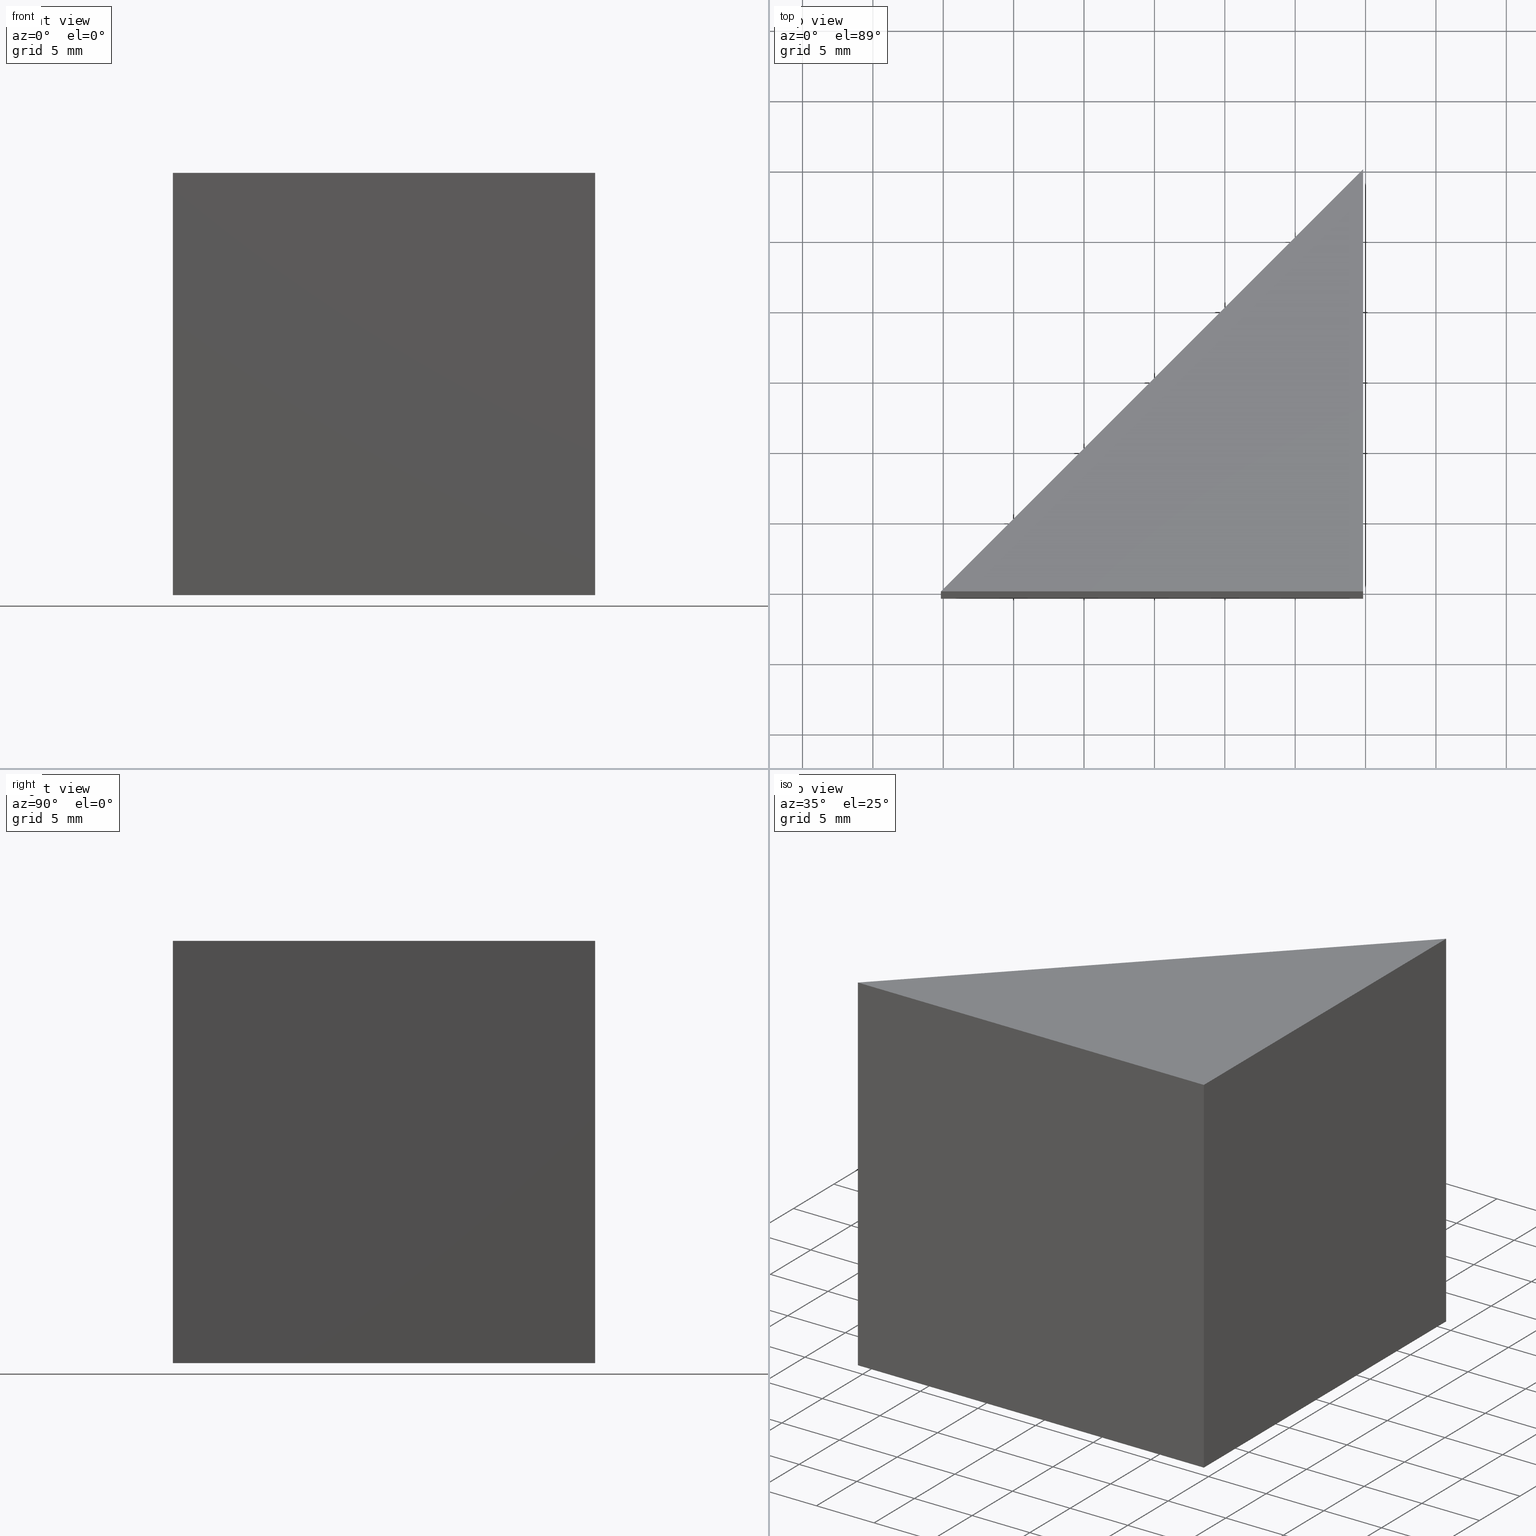
[diagram: canonical four-view strip — front | top / right | iso, engineering-drawing reading convention]
A machine part, canonical four-view strip (front | top / right | iso — engineering-drawing reading convention). The complete STEP part file that produces these views, byte-faithful:
ISO-10303-21;
HEADER;
FILE_DESCRIPTION (( 'STEP AP203' ),
    '1' );
FILE_NAME ('355509.STEP',
    '2019-07-22T06:09:25',
    ( '' ),
    ( '' ),
    'SwSTEP 2.0',
    'SolidWorks 2016',
    '' );
FILE_SCHEMA (( 'CONFIG_CONTROL_DESIGN' ));
ENDSEC;

DATA;
#1 = PERSON_AND_ORGANIZATION ( #153, #29 ) ;
#2 = CC_DESIGN_PERSON_AND_ORGANIZATION_ASSIGNMENT ( #198, #209, ( #26 ) ) ;
#3 = CALENDAR_DATE ( 2019, 22, 7 ) ;
#4 = CC_DESIGN_DATE_AND_TIME_ASSIGNMENT ( #94, #184, ( #217 ) ) ;
#5 = VECTOR ( 'NONE', #162, 1000.000000000000100 ) ;
#6 = APPROVAL ( #142, 'δָ��' ) ;
#7 = PRODUCT ( '355509', '355509', '', ( #166 ) ) ;
#8 = LOCAL_TIME ( 14, 9, 25.00000000000000000, #240 ) ;
#9 = CARTESIAN_POINT ( 'NONE',  ( 104.8284382265434300, 79.66744214418361000, 0.0000000000000000000 ) ) ;
#10 = CARTESIAN_POINT ( 'NONE',  ( 0.0000000000000000000, 0.0000000000000000000, 30.00000000000000000 ) ) ;
#11 = APPROVAL_DATE_TIME ( #191, #23 ) ;
#12 = CARTESIAN_POINT ( 'NONE',  ( 74.82843822654344000, 79.66744214418361000, 0.0000000000000000000 ) ) ;
#13 = VERTEX_POINT ( 'NONE', #140 ) ;
#14 = PRODUCT_DEFINITION_SHAPE ( 'NONE', 'NONE',  #217 ) ;
#15 = MANIFOLD_SOLID_BREP ( '͹̨-����1', #266 ) ;
#16 = EDGE_CURVE ( 'NONE', #257, #59, #186, .T. ) ;
#17 = APPROVAL_STATUS ( 'not_yet_approved' ) ;
#18 = APPLICATION_CONTEXT ( 'configuration controlled 3d designs of mechanical parts and assemblies' ) ;
#19 = APPROVAL_ROLE ( '' ) ;
#20 =( NAMED_UNIT ( * ) SI_UNIT ( $, .STERADIAN. ) SOLID_ANGLE_UNIT ( ) );
#21 = VECTOR ( 'NONE', #273, 1000.000000000000000 ) ;
#22 = SECURITY_CLASSIFICATION ( '', '', #42 ) ;
#23 = APPROVAL ( #255, 'δָ��' ) ;
#24 = CALENDAR_DATE ( 2019, 22, 7 ) ;
#25 = EDGE_LOOP ( 'NONE', ( #205, #136, #37, #175 ) ) ;
#26 = PRODUCT ( '355509', '355509', '', ( #62 ) ) ;
#27 = CALENDAR_DATE ( 2019, 22, 7 ) ;
#28 = APPROVAL_PERSON_ORGANIZATION ( #188, #23, #233 ) ;
#29 = ORGANIZATION ( 'δָ��', 'δָ��', '' ) ;
#30 = PLANE ( 'NONE',  #247 ) ;
#31 = VERTEX_POINT ( 'NONE', #160 ) ;
#32 = DIRECTION ( 'NONE',  ( -1.000000000000000000, 0.0000000000000000000, 0.0000000000000000000 ) ) ;
#33 = CARTESIAN_POINT ( 'NONE',  ( 104.8284382265434300, 79.66744214418361000, 30.00000000000000000 ) ) ;
#34 = CALENDAR_DATE ( 2019, 22, 7 ) ;
#35 = CARTESIAN_POINT ( 'NONE',  ( 104.8284382265434300, 79.66744214418361000, 30.00000000000000000 ) ) ;
#36 = DATE_AND_TIME ( #178, #108 ) ;
#37 = ORIENTED_EDGE ( 'NONE', *, *, #69, .F. ) ;
#38 = PERSON_AND_ORGANIZATION_ROLE ( 'design_supplier' ) ;
#39 =( NAMED_UNIT ( * ) PLANE_ANGLE_UNIT ( ) SI_UNIT ( $, .RADIAN. ) );
#40 = APPROVAL_PERSON_ORGANIZATION ( #264, #207, #63 ) ;
#41 = ADVANCED_FACE ( 'NONE', ( #90 ), #202, .F. ) ;
#42 = SECURITY_CLASSIFICATION_LEVEL ( 'unclassified' ) ;
#43 = CC_DESIGN_APPROVAL ( #23, ( #155 ) ) ;
#44 = ORIENTED_EDGE ( 'NONE', *, *, #282, .T. ) ;
#45 = APPLICATION_PROTOCOL_DEFINITION ( 'international standard', 'config_control_design', 1994, #145 ) ;
#46 = LOCAL_TIME ( 14, 9, 25.00000000000000000, #89 ) ;
#47 = ORIENTED_EDGE ( 'NONE', *, *, #69, .T. ) ;
#48 = PRODUCT_DEFINITION ( 'δ֪', '', #92, #130 ) ;
#49 = LOCAL_TIME ( 14, 9, 25.00000000000000000, #106 ) ;
#50 = VECTOR ( 'NONE', #161, 1000.000000000000100 ) ;
#51 = LINE ( 'NONE', #9, #195 ) ;
#52 = CC_DESIGN_PERSON_AND_ORGANIZATION_ASSIGNMENT ( #171, #84, ( #258 ) ) ;
#53 = APPROVAL_PERSON_ORGANIZATION ( #271, #253, #19 ) ;
#54 = LINE ( 'NONE', #81, #21 ) ;
#55 = DIRECTION ( 'NONE',  ( 1.000000000000000000, -0.0000000000000000000, -0.0000000000000000000 ) ) ;
#56 = APPROVAL_DATE_TIME ( #225, #6 ) ;
#57 = APPROVAL_PERSON_ORGANIZATION ( #192, #61, #235 ) ;
#58 = PLANE ( 'NONE',  #177 ) ;
#59 = VERTEX_POINT ( 'NONE', #245 ) ;
#60 = PERSON_AND_ORGANIZATION_ROLE ( 'design_supplier' ) ;
#61 = APPROVAL ( #17, 'δָ��' ) ;
#62 = MECHANICAL_CONTEXT ( 'NONE', #208, 'mechanical' ) ;
#63 = APPROVAL_ROLE ( '' ) ;
#64 = DIRECTION ( 'NONE',  ( 1.000000000000000000, 0.0000000000000000000, 0.0000000000000000000 ) ) ;
#65 = UNCERTAINTY_MEASURE_WITH_UNIT (LENGTH_MEASURE( 1.000000000000000100E-005 ), #274, 'distance_accuracy_value', 'NONE');
#66 = APPROVAL_STATUS ( 'not_yet_approved' ) ;
#67 = VECTOR ( 'NONE', #180, 1000.000000000000000 ) ;
#68 = CC_DESIGN_DATE_AND_TIME_ASSIGNMENT ( #213, #110, ( #22 ) ) ;
#69 = EDGE_CURVE ( 'NONE', #31, #257, #226, .T. ) ;
#70 = CC_DESIGN_APPROVAL ( #6, ( #258 ) ) ;
#71 = CC_DESIGN_DATE_AND_TIME_ASSIGNMENT ( #36, #165, ( #48 ) ) ;
#72 = CC_DESIGN_APPROVAL ( #82, ( #217 ) ) ;
#73 = DIRECTION ( 'NONE',  ( -0.0000000000000000000, -0.0000000000000000000, -1.000000000000000000 ) ) ;
#74 = EDGE_CURVE ( 'NONE', #31, #13, #220, .T. ) ;
#75 = LOCAL_TIME ( 14, 9, 25.00000000000000000, #249 ) ;
#76 = VECTOR ( 'NONE', #159, 1000.000000000000000 ) ;
#77 = CARTESIAN_POINT ( 'NONE',  ( 74.82843822654344000, 79.66744214418361000, 30.00000000000000000 ) ) ;
#78 = EDGE_CURVE ( 'NONE', #236, #13, #260, .T. ) ;
#79 = CARTESIAN_POINT ( 'NONE',  ( 0.0000000000000000000, 0.0000000000000000000, 0.0000000000000000000 ) ) ;
#80 = ADVANCED_BREP_SHAPE_REPRESENTATION ( '355509', ( #15, #163 ), #87 ) ;
#81 = CARTESIAN_POINT ( 'NONE',  ( 74.82843822654344000, 79.66744214418361000, 30.00000000000000000 ) ) ;
#82 = APPROVAL ( #66, 'δָ��' ) ;
#83 = LOCAL_TIME ( 14, 9, 25.00000000000000000, #173 ) ;
#84 = PERSON_AND_ORGANIZATION_ROLE ( 'classification_officer' ) ;
#85 = ORIENTED_EDGE ( 'NONE', *, *, #78, .T. ) ;
#86 = PERSON_AND_ORGANIZATION_ROLE ( 'creator' ) ;
#87 =( GEOMETRIC_REPRESENTATION_CONTEXT ( 3 ) GLOBAL_UNCERTAINTY_ASSIGNED_CONTEXT ( ( #65 ) ) GLOBAL_UNIT_ASSIGNED_CONTEXT ( ( #274, #39, #20 ) ) REPRESENTATION_CONTEXT ( 'NONE', 'WORKASPACE' ) );
#88 = APPROVAL_STATUS ( 'not_yet_approved' ) ;
#89 = COORDINATED_UNIVERSAL_TIME_OFFSET ( 8, 0, .AHEAD. ) ;
#90 = FACE_OUTER_BOUND ( 'NONE', #214, .T. ) ;
#91 = PERSON_AND_ORGANIZATION ( #153, #29 ) ;
#92 = PRODUCT_DEFINITION_FORMATION_WITH_SPECIFIED_SOURCE ( '�κ�', '', #7, .NOT_KNOWN. ) ;
#93 = APPROVAL_ROLE ( '' ) ;
#94 = DATE_AND_TIME ( #24, #46 ) ;
#95 = ORIENTED_EDGE ( 'NONE', *, *, #96, .F. ) ;
#96 = EDGE_CURVE ( 'NONE', #13, #262, #51, .T. ) ;
#97 = PLANE ( 'NONE',  #196 ) ;
#98 = ORIENTED_EDGE ( 'NONE', *, *, #74, .F. ) ;
#99 = CC_DESIGN_PERSON_AND_ORGANIZATION_ASSIGNMENT ( #91, #60, ( #155 ) ) ;
#100 = CARTESIAN_POINT ( 'NONE',  ( 104.8284382265434300, 79.66744214418361000, 30.00000000000000000 ) ) ;
#101 = APPROVAL_DATE_TIME ( #267, #82 ) ;
#102 = ORIENTED_EDGE ( 'NONE', *, *, #128, .F. ) ;
#103 = DATE_TIME_ROLE ( 'classification_date' ) ;
#104 = DIRECTION ( 'NONE',  ( 0.0000000000000000000, 0.0000000000000000000, -1.000000000000000000 ) ) ;
#105 = CC_DESIGN_PERSON_AND_ORGANIZATION_ASSIGNMENT ( #157, #182, ( #22 ) ) ;
#106 = COORDINATED_UNIVERSAL_TIME_OFFSET ( 8, 0, .AHEAD. ) ;
#107 = CARTESIAN_POINT ( 'NONE',  ( 104.8284382265434300, 109.6674421441836100, 0.0000000000000000000 ) ) ;
#108 = LOCAL_TIME ( 14, 9, 25.00000000000000000, #131 ) ;
#109 = ORIENTED_EDGE ( 'NONE', *, *, #78, .F. ) ;
#110 = DATE_TIME_ROLE ( 'classification_date' ) ;
#111 = DATE_AND_TIME ( #138, #158 ) ;
#112 = VECTOR ( 'NONE', #179, 1000.000000000000000 ) ;
#113 = DATE_AND_TIME ( #27, #216 ) ;
#114 = SHAPE_DEFINITION_REPRESENTATION ( #14, #80 ) ;
#115 = ORIENTED_EDGE ( 'NONE', *, *, #282, .F. ) ;
#116 = PRODUCT_DEFINITION_SHAPE ( 'NONE', 'NONE',  #48 ) ;
#117 = CC_DESIGN_SECURITY_CLASSIFICATION ( #258, ( #155 ) ) ;
#118 = CARTESIAN_POINT ( 'NONE',  ( 104.8284382265434300, 79.66744214418361000, 0.0000000000000000000 ) ) ;
#119 = DIRECTION ( 'NONE',  ( 0.0000000000000000000, 0.0000000000000000000, 1.000000000000000000 ) ) ;
#120 = ORIENTED_EDGE ( 'NONE', *, *, #128, .T. ) ;
#121 = DIRECTION ( 'NONE',  ( 0.0000000000000000000, 1.000000000000000000, 0.0000000000000000000 ) ) ;
#122 = DIRECTION ( 'NONE',  ( 0.0000000000000000000, 0.0000000000000000000, 1.000000000000000000 ) ) ;
#123 = COORDINATED_UNIVERSAL_TIME_OFFSET ( 8, 0, .AHEAD. ) ;
#124 = DIRECTION ( 'NONE',  ( 0.7071067811865474600, 0.7071067811865474600, 0.0000000000000000000 ) ) ;
#125 = PERSON_AND_ORGANIZATION_ROLE ( 'creator' ) ;
#126 = PERSON_AND_ORGANIZATION_ROLE ( 'creator' ) ;
#127 = CC_DESIGN_PERSON_AND_ORGANIZATION_ASSIGNMENT ( #210, #280, ( #217 ) ) ;
#128 = EDGE_CURVE ( 'NONE', #59, #31, #134, .T. ) ;
#129 = DATE_AND_TIME ( #194, #8 ) ;
#130 = DESIGN_CONTEXT ( 'detailed design', #145, 'design' ) ;
#131 = COORDINATED_UNIVERSAL_TIME_OFFSET ( 8, 0, .AHEAD. ) ;
#132 = PERSON_AND_ORGANIZATION ( #153, #29 ) ;
#133 = PERSON_AND_ORGANIZATION ( #153, #29 ) ;
#134 = LINE ( 'NONE', #33, #272 ) ;
#135 = PERSON_AND_ORGANIZATION ( #153, #29 ) ;
#136 = ORIENTED_EDGE ( 'NONE', *, *, #172, .F. ) ;
#137 = DIRECTION ( 'NONE',  ( 0.0000000000000000000, 1.000000000000000000, -0.0000000000000000000 ) ) ;
#138 = CALENDAR_DATE ( 2019, 22, 7 ) ;
#139 = DIRECTION ( 'NONE',  ( 0.0000000000000000000, 0.0000000000000000000, 1.000000000000000000 ) ) ;
#140 = CARTESIAN_POINT ( 'NONE',  ( 104.8284382265434300, 79.66744214418361000, 0.0000000000000000000 ) ) ;
#141 = COORDINATED_UNIVERSAL_TIME_OFFSET ( 8, 0, .AHEAD. ) ;
#142 = APPROVAL_STATUS ( 'not_yet_approved' ) ;
#143 = FACE_OUTER_BOUND ( 'NONE', #25, .T. ) ;
#144 = CARTESIAN_POINT ( 'NONE',  ( 0.0000000000000000000, 0.0000000000000000000, 0.0000000000000000000 ) ) ;
#145 = APPLICATION_CONTEXT ( 'configuration controlled 3d designs of mechanical parts and assemblies' ) ;
#146 = PRODUCT_RELATED_PRODUCT_CATEGORY ( 'detail', '', ( #7 ) ) ;
#147 = DIRECTION ( 'NONE',  ( -1.000000000000000000, 0.0000000000000000000, -0.0000000000000000000 ) ) ;
#148 = APPROVAL_PERSON_ORGANIZATION ( #277, #82, #204 ) ;
#149 = ORIENTED_EDGE ( 'NONE', *, *, #16, .T. ) ;
#150 = APPLICATION_CONTEXT ( 'configuration controlled 3d designs of mechanical parts and assemblies' ) ;
#151 = ORIENTED_EDGE ( 'NONE', *, *, #16, .F. ) ;
#152 = CC_DESIGN_PERSON_AND_ORGANIZATION_ASSIGNMENT ( #132, #126, ( #92 ) ) ;
#153 = PERSON ( 'δָ��', 'δָ��', 'δָ��', ('δָ��'), ('δָ��'), ('δָ��') ) ;
#154 = EDGE_LOOP ( 'NONE', ( #109, #156, #95 ) ) ;
#155 = PRODUCT_DEFINITION_FORMATION_WITH_SPECIFIED_SOURCE ( '�κ�', '', #26, .NOT_KNOWN. ) ;
#156 = ORIENTED_EDGE ( 'NONE', *, *, #187, .F. ) ;
#157 = PERSON_AND_ORGANIZATION ( #153, #29 ) ;
#158 = LOCAL_TIME ( 14, 9, 25.00000000000000000, #281 ) ;
#159 = DIRECTION ( 'NONE',  ( 1.000000000000000000, -0.0000000000000000000, -0.0000000000000000000 ) ) ;
#160 = CARTESIAN_POINT ( 'NONE',  ( 104.8284382265434300, 79.66744214418361000, 30.00000000000000000 ) ) ;
#161 = DIRECTION ( 'NONE',  ( -0.7071067811865474600, -0.7071067811865474600, -0.0000000000000000000 ) ) ;
#162 = DIRECTION ( 'NONE',  ( -0.7071067811865474600, -0.7071067811865474600, -0.0000000000000000000 ) ) ;
#163 = AXIS2_PLACEMENT_3D ( 'NONE', #144, #169, #64 ) ;
#164 = EDGE_LOOP ( 'NONE', ( #120, #47, #149 ) ) ;
#165 = DATE_TIME_ROLE ( 'creation_date' ) ;
#166 = MECHANICAL_CONTEXT ( 'NONE', #18, 'mechanical' ) ;
#167 = PERSON_AND_ORGANIZATION ( #153, #29 ) ;
#168 = APPLICATION_PROTOCOL_DEFINITION ( 'international standard', 'config_control_design', 1994, #150 ) ;
#169 = DIRECTION ( 'NONE',  ( 0.0000000000000000000, 0.0000000000000000000, 1.000000000000000000 ) ) ;
#170 = PERSON_AND_ORGANIZATION_ROLE ( 'design_owner' ) ;
#171 = PERSON_AND_ORGANIZATION ( #153, #29 ) ;
#172 = EDGE_CURVE ( 'NONE', #257, #262, #250, .T. ) ;
#173 = COORDINATED_UNIVERSAL_TIME_OFFSET ( 8, 0, .AHEAD. ) ;
#174 = LOCAL_TIME ( 14, 9, 25.00000000000000000, #141 ) ;
#175 = ORIENTED_EDGE ( 'NONE', *, *, #74, .T. ) ;
#176 = AXIS2_PLACEMENT_3D ( 'NONE', #229, #248, #124 ) ;
#177 = AXIS2_PLACEMENT_3D ( 'NONE', #79, #223, #227 ) ;
#178 = CALENDAR_DATE ( 2019, 22, 7 ) ;
#179 = DIRECTION ( 'NONE',  ( -0.0000000000000000000, -0.0000000000000000000, -1.000000000000000000 ) ) ;
#180 = DIRECTION ( 'NONE',  ( 0.0000000000000000000, 1.000000000000000000, 0.0000000000000000000 ) ) ;
#181 = APPROVAL_STATUS ( 'not_yet_approved' ) ;
#182 = PERSON_AND_ORGANIZATION_ROLE ( 'classification_officer' ) ;
#183 = ADVANCED_FACE ( 'NONE', ( #279 ), #58, .T. ) ;
#184 = DATE_TIME_ROLE ( 'creation_date' ) ;
#185 = APPROVAL_DATE_TIME ( #111, #61 ) ;
#186 = LINE ( 'NONE', #77, #5 ) ;
#187 = EDGE_CURVE ( 'NONE', #262, #236, #238, .T. ) ;
#188 = PERSON_AND_ORGANIZATION ( #153, #29 ) ;
#189 = ORIENTED_EDGE ( 'NONE', *, *, #187, .T. ) ;
#190 = CC_DESIGN_PERSON_AND_ORGANIZATION_ASSIGNMENT ( #256, #170, ( #7 ) ) ;
#191 = DATE_AND_TIME ( #254, #75 ) ;
#192 = PERSON_AND_ORGANIZATION ( #153, #29 ) ;
#193 = ORIENTED_EDGE ( 'NONE', *, *, #172, .T. ) ;
#194 = CALENDAR_DATE ( 2019, 22, 7 ) ;
#195 = VECTOR ( 'NONE', #121, 1000.000000000000000 ) ;
#196 = AXIS2_PLACEMENT_3D ( 'NONE', #242, #32, #119 ) ;
#197 = CC_DESIGN_APPROVAL ( #207, ( #22 ) ) ;
#198 = PERSON_AND_ORGANIZATION ( #153, #29 ) ;
#199 = CARTESIAN_POINT ( 'NONE',  ( 104.8284382265434300, 109.6674421441836100, 30.00000000000000000 ) ) ;
#200 = FACE_OUTER_BOUND ( 'NONE', #201, .T. ) ;
#201 = EDGE_LOOP ( 'NONE', ( #189, #115, #151, #193 ) ) ;
#202 = PLANE ( 'NONE',  #230 ) ;
#203 = CARTESIAN_POINT ( 'NONE',  ( 104.8284382265434300, 109.6674421441836100, 30.00000000000000000 ) ) ;
#204 = APPROVAL_ROLE ( '' ) ;
#205 = ORIENTED_EDGE ( 'NONE', *, *, #96, .T. ) ;
#206 = CARTESIAN_POINT ( 'NONE',  ( 0.0000000000000000000, 0.0000000000000000000, 0.0000000000000000000 ) ) ;
#207 = APPROVAL ( #181, 'δָ��' ) ;
#208 = APPLICATION_CONTEXT ( 'configuration controlled 3d designs of mechanical parts and assemblies' ) ;
#209 = PERSON_AND_ORGANIZATION_ROLE ( 'design_owner' ) ;
#210 = PERSON_AND_ORGANIZATION ( #153, #29 ) ;
#211 = APPLICATION_PROTOCOL_DEFINITION ( 'international standard', 'config_control_design', 1994, #18 ) ;
#212 = CC_DESIGN_DATE_AND_TIME_ASSIGNMENT ( #275, #103, ( #258 ) ) ;
#213 = DATE_AND_TIME ( #222, #174 ) ;
#214 = EDGE_LOOP ( 'NONE', ( #85, #98, #102, #44 ) ) ;
#215 = DESIGN_CONTEXT ( 'detailed design', #150, 'design' ) ;
#216 = LOCAL_TIME ( 14, 9, 25.00000000000000000, #259 ) ;
#217 = PRODUCT_DEFINITION ( 'δ֪', '', #155, #215 ) ;
#218 = FACE_OUTER_BOUND ( 'NONE', #164, .T. ) ;
#219 = APPROVAL_PERSON_ORGANIZATION ( #167, #6, #93 ) ;
#220 = LINE ( 'NONE', #35, #112 ) ;
#221 = CC_DESIGN_PERSON_AND_ORGANIZATION_ASSIGNMENT ( #1, #38, ( #92 ) ) ;
#222 = CALENDAR_DATE ( 2019, 22, 7 ) ;
#223 = DIRECTION ( 'NONE',  ( 0.0000000000000000000, 0.0000000000000000000, -1.000000000000000000 ) ) ;
#224 = CC_DESIGN_PERSON_AND_ORGANIZATION_ASSIGNMENT ( #133, #86, ( #48 ) ) ;
#225 = DATE_AND_TIME ( #34, #263 ) ;
#226 = LINE ( 'NONE', #270, #67 ) ;
#227 = DIRECTION ( 'NONE',  ( -1.000000000000000000, 0.0000000000000000000, -0.0000000000000000000 ) ) ;
#228 = SECURITY_CLASSIFICATION_LEVEL ( 'unclassified' ) ;
#229 = CARTESIAN_POINT ( 'NONE',  ( 74.82843822654344000, 79.66744214418361000, 30.00000000000000000 ) ) ;
#230 = AXIS2_PLACEMENT_3D ( 'NONE', #100, #137, #139 ) ;
#231 = APPROVAL_DATE_TIME ( #129, #253 ) ;
#232 = APPLICATION_PROTOCOL_DEFINITION ( 'international standard', 'config_control_design', 1994, #208 ) ;
#233 = APPROVAL_ROLE ( '' ) ;
#234 = ADVANCED_FACE ( 'NONE', ( #143 ), #97, .F. ) ;
#235 = APPROVAL_ROLE ( '' ) ;
#236 = VERTEX_POINT ( 'NONE', #12 ) ;
#237 = PRODUCT_RELATED_PRODUCT_CATEGORY ( 'detail', '', ( #26 ) ) ;
#238 = LINE ( 'NONE', #246, #50 ) ;
#239 = CC_DESIGN_PERSON_AND_ORGANIZATION_ASSIGNMENT ( #135, #125, ( #155 ) ) ;
#240 = COORDINATED_UNIVERSAL_TIME_OFFSET ( 8, 0, .AHEAD. ) ;
#241 = CC_DESIGN_APPROVAL ( #61, ( #48 ) ) ;
#242 = CARTESIAN_POINT ( 'NONE',  ( 104.8284382265434300, 79.66744214418361000, 30.00000000000000000 ) ) ;
#243 = CALENDAR_DATE ( 2019, 22, 7 ) ;
#244 = VECTOR ( 'NONE', #73, 1000.000000000000000 ) ;
#245 = CARTESIAN_POINT ( 'NONE',  ( 74.82843822654344000, 79.66744214418361000, 30.00000000000000000 ) ) ;
#246 = CARTESIAN_POINT ( 'NONE',  ( 74.82843822654344000, 79.66744214418361000, 0.0000000000000000000 ) ) ;
#247 = AXIS2_PLACEMENT_3D ( 'NONE', #10, #104, #147 ) ;
#248 = DIRECTION ( 'NONE',  ( 0.7071067811865475700, -0.7071067811865475700, 0.0000000000000000000 ) ) ;
#249 = COORDINATED_UNIVERSAL_TIME_OFFSET ( 8, 0, .AHEAD. ) ;
#250 = LINE ( 'NONE', #203, #244 ) ;
#251 = PLANE ( 'NONE',  #176 ) ;
#252 = ADVANCED_FACE ( 'NONE', ( #218 ), #30, .F. ) ;
#253 = APPROVAL ( #88, 'δָ��' ) ;
#254 = CALENDAR_DATE ( 2019, 22, 7 ) ;
#255 = APPROVAL_STATUS ( 'not_yet_approved' ) ;
#256 = PERSON_AND_ORGANIZATION ( #153, #29 ) ;
#257 = VERTEX_POINT ( 'NONE', #199 ) ;
#258 = SECURITY_CLASSIFICATION ( '', '', #228 ) ;
#259 = COORDINATED_UNIVERSAL_TIME_OFFSET ( 8, 0, .AHEAD. ) ;
#260 = LINE ( 'NONE', #118, #76 ) ;
#261 = APPROVAL_DATE_TIME ( #113, #207 ) ;
#262 = VERTEX_POINT ( 'NONE', #107 ) ;
#263 = LOCAL_TIME ( 14, 9, 25.00000000000000000, #123 ) ;
#264 = PERSON_AND_ORGANIZATION ( #153, #29 ) ;
#265 = AXIS2_PLACEMENT_3D ( 'NONE', #206, #122, #276 ) ;
#266 = CLOSED_SHELL ( 'NONE', ( #41, #234, #278, #252, #183 ) ) ;
#267 = DATE_AND_TIME ( #243, #49 ) ;
#268 = CC_DESIGN_APPROVAL ( #253, ( #92 ) ) ;
#269 = CC_DESIGN_SECURITY_CLASSIFICATION ( #22, ( #92 ) ) ;
#270 = CARTESIAN_POINT ( 'NONE',  ( 104.8284382265434300, 79.66744214418361000, 30.00000000000000000 ) ) ;
#271 = PERSON_AND_ORGANIZATION ( #153, #29 ) ;
#272 = VECTOR ( 'NONE', #55, 1000.000000000000000 ) ;
#273 = DIRECTION ( 'NONE',  ( -0.0000000000000000000, -0.0000000000000000000, -1.000000000000000000 ) ) ;
#274 =( LENGTH_UNIT ( ) NAMED_UNIT ( * ) SI_UNIT ( .MILLI., .METRE. ) );
#275 = DATE_AND_TIME ( #3, #83 ) ;
#276 = DIRECTION ( 'NONE',  ( 1.000000000000000000, 0.0000000000000000000, 0.0000000000000000000 ) ) ;
#277 = PERSON_AND_ORGANIZATION ( #153, #29 ) ;
#278 = ADVANCED_FACE ( 'NONE', ( #200 ), #251, .F. ) ;
#279 = FACE_OUTER_BOUND ( 'NONE', #154, .T. ) ;
#280 = PERSON_AND_ORGANIZATION_ROLE ( 'creator' ) ;
#281 = COORDINATED_UNIVERSAL_TIME_OFFSET ( 8, 0, .AHEAD. ) ;
#282 = EDGE_CURVE ( 'NONE', #59, #236, #54, .T. ) ;
ENDSEC;
END-ISO-10303-21;
